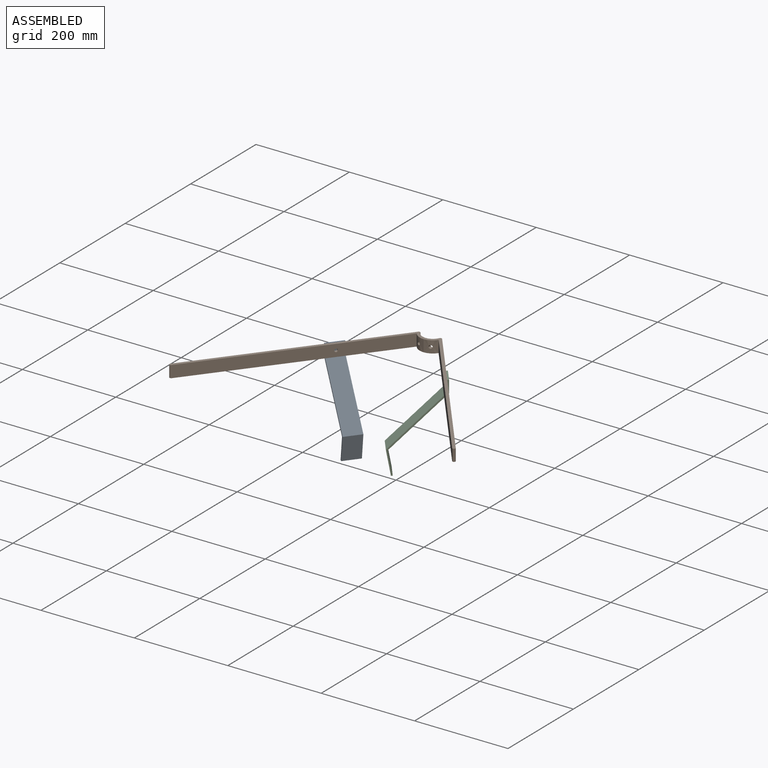
[diagram: assembled view]
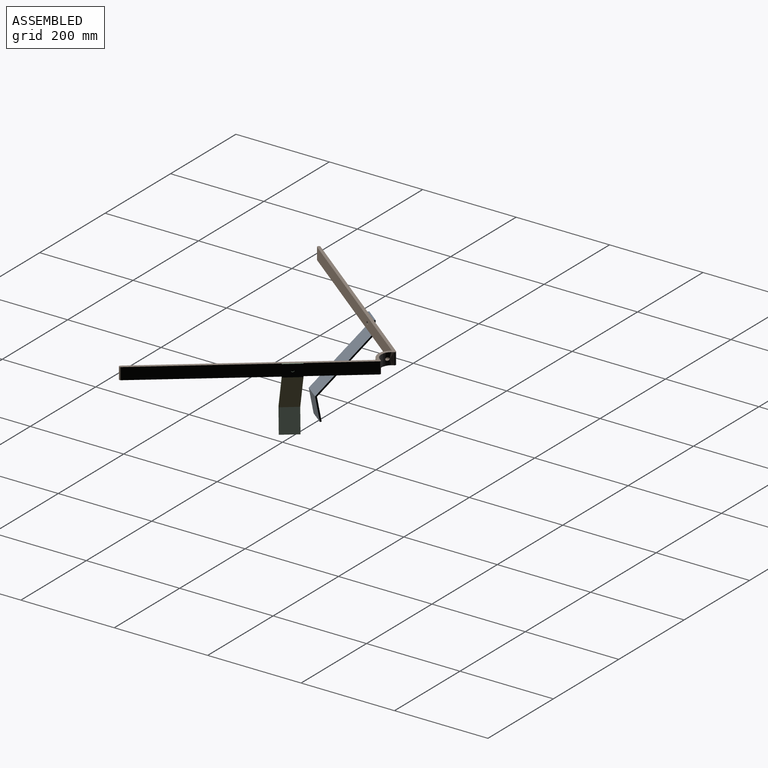
[diagram: assembled view, second angle]
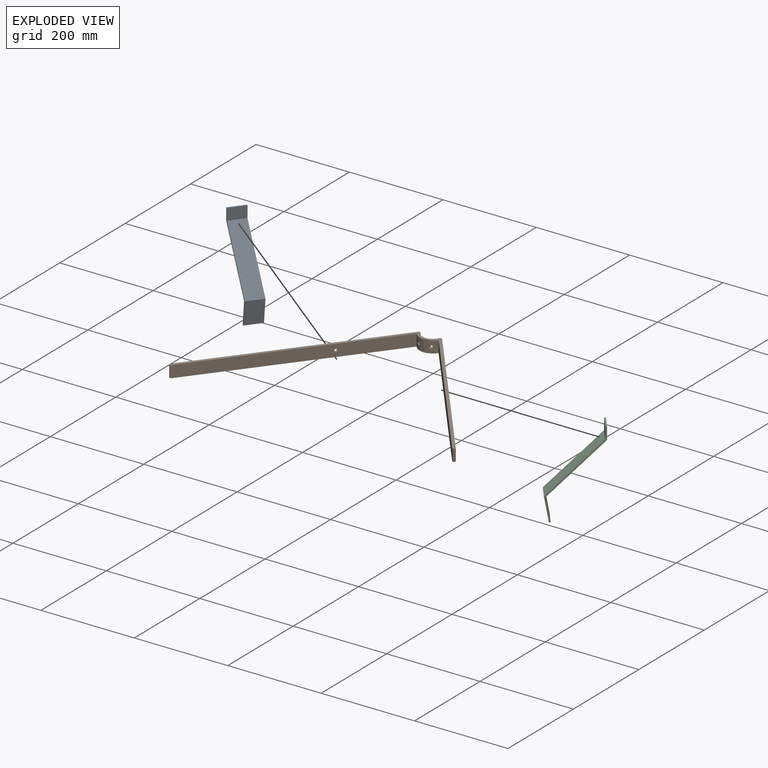
[diagram: exploded view]
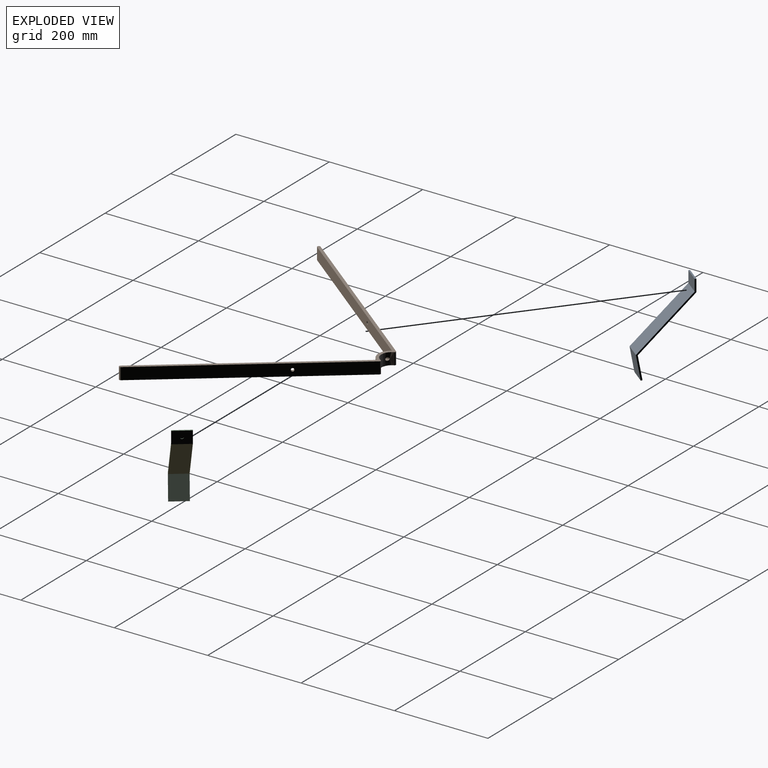
[diagram: exploded view, second angle]
ASSEMBLY  parts=3 mates=2
PART A: 12 faces, bbox 185.5x38.1x101.3 mm
  f0: plane 38.1x2.66mm, normal (0.54,0,0.84), area 121mm2, adj f1,f3,f6,f9
  f1: plane 185.53x101.26mm, normal (0,1,0), area 725.8mm2, adj f0,f2,f4,f5,f6,f7,f8,f9
  f2: plane 38.1x2.92mm, normal (-0.39,0,-0.92), area 121mm2, adj f1,f3,f4,f7
  f3: plane 185.53x101.26mm, normal (0,-1,0), area 725.8mm2, adj f0,f2,f4,f5,f6,f7,f8,f9
  f4: plane 47.53x38.1mm, normal (-0.92,0,0.39), area 1967mm2, adj f1,f2,f3,f5
  f5: plane 149.23x38.1mm, normal (-0.21,0,0.98), area 5812.9mm2, adj f1,f3,f4,f6
  f6: plane 38.1x20.75mm, normal (-0.84,0,0.54), area 942.7mm2, adj f0,f1,f3,f5
  f7: plane 46x38.1mm, normal (0.92,0,-0.39), area 1904mm2, adj f1,f2,f3,f8
  f8: plane 148.9x38.1mm, normal (0.21,0,-0.98), area 5800mm2, adj f1,f3,f7,f9
  f9: plane 38.1x21.86mm, normal (0.84,0,-0.54), area 956.9mm2, adj f0,f1,f3,f8,f10
  f10: cylinder r=3.38mm len=6.76mm, axis (-0.84,0,0.54), area 33.7mm2, adj f9,f11
  f11: plane 6.76x5.67mm, normal (0.84,0,-0.54), area 35.9mm2, adj f10
PART B: 16 faces, bbox 612x364x25.4 mm
  f0: cylinder r=28.57mm len=47.08mm, axis (0,0,1), area 1325.2mm2, adj f2,f3,f4,f5,f12,f13
  f1: cylinder r=22.23mm len=40.47mm, axis (0,0,1), area 1203.3mm2, adj f2,f3,f10,f11,f12,f13
  f2: plane 612.04x363.97mm, normal (0,0,-1), area 6155.9mm2, adj f0,f1,f4,f5,f6,f7,f8,f9
  f3: plane 612.04x363.97mm, normal (0,0,1), area 6155.9mm2, adj f0,f1,f4,f5,f6,f7,f8,f9
  f4: plane 353.89x276.8mm, normal (0.79,-0.62,0), area 11376.1mm2, adj f0,f2,f3,f8,f15
  f5: plane 353.89x276.8mm, normal (-0.79,-0.62,0), area 11376.1mm2, adj f0,f2,f3,f9,f14
  f6: plane 357.62x279.72mm, normal (-0.79,0.62,0), area 11496.4mm2, adj f2,f3,f8,f10,f15
  f7: plane 357.62x279.72mm, normal (0.79,0.62,0), area 11496.4mm2, adj f2,f3,f9,f11,f14
  f8: cylinder r=3.17mm len=25.4mm, axis (0,0,-1), area 253.4mm2, adj f2,f3,f4,f6
  f9: cylinder r=3.17mm len=25.4mm, axis (0,0,1), area 253.4mm2, adj f2,f3,f5,f7
  f10: cylinder r=3.17mm len=25.4mm, axis (0,0,1), area 165.4mm2, adj f1,f2,f3,f6
  f11: cylinder r=3.17mm len=25.4mm, axis (0,0,1), area 165.4mm2, adj f1,f2,f3,f7
  f12: cylinder r=3.38mm len=11.67mm, axis (0,-1,0), area 158.2mm2, adj f0,f1
  f13: cylinder r=3.38mm len=11.67mm, axis (0,-1,0), area 158.3mm2, adj f0,f1
  f14: cylinder r=3.38mm len=9.23mm, axis (0.79,0.62,0), area 134.8mm2, adj f5,f7
  f15: cylinder r=3.38mm len=9.23mm, axis (-0.79,0.62,0), area 134.8mm2, adj f4,f6
PART C: same geometry as A
PLACE A rot(axis=(0.28,-0.1,0.95),143.6deg) t=(-183.3,70.99,-54.36)mm
PLACE B t=(-56.79,-19.63,-30.76)mm
PLACE C rot(axis=(0.22,-0.64,0.74),49.9deg) t=(69.73,70.99,-54.36)mm
MATE fastened C.f9 <-> B.f14  axis (-0.79,-0.62,0) through (65.23,67.47,-30.76)mm
MATE fastened A.f9 <-> B.f15  axis (0.79,-0.62,0) through (-178.81,67.47,-30.76)mm
